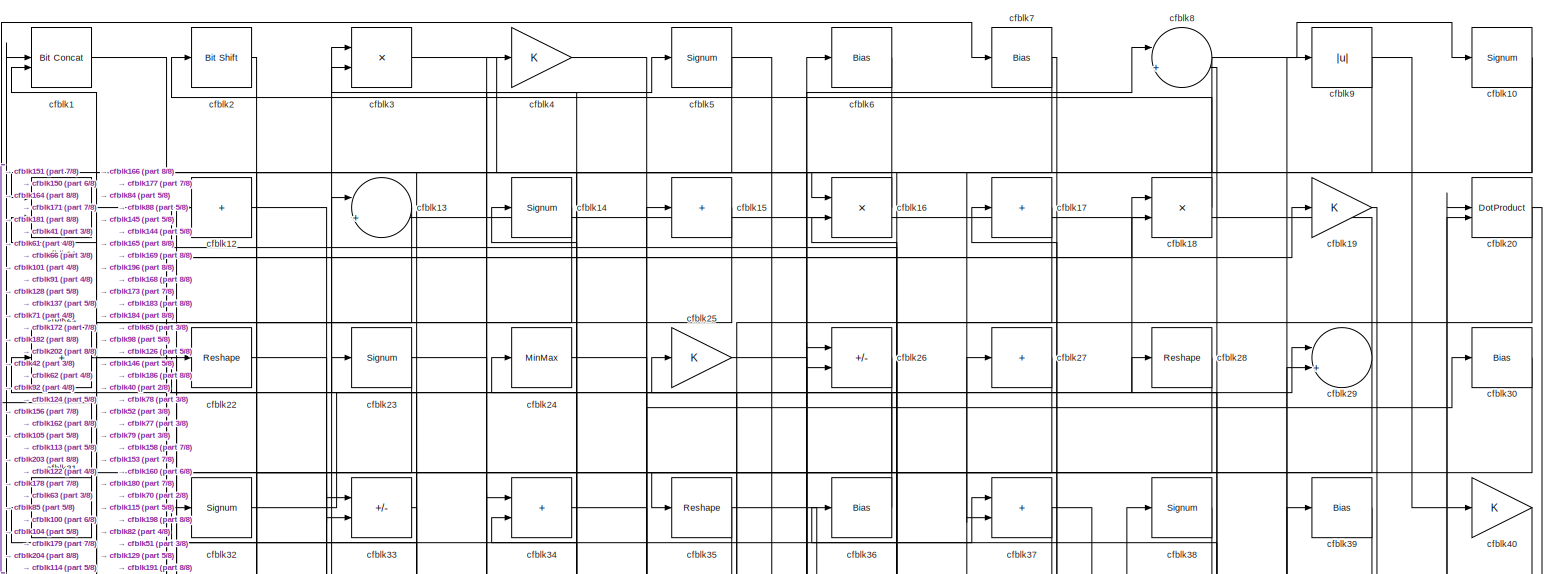
[diagram: root canvas - part 1/8, full width, top band]
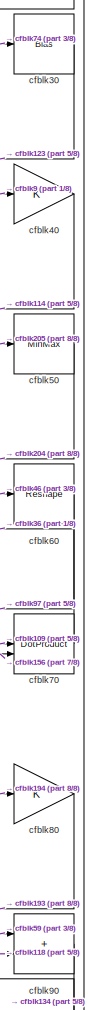
[diagram: root canvas - part 2/8, top right region]
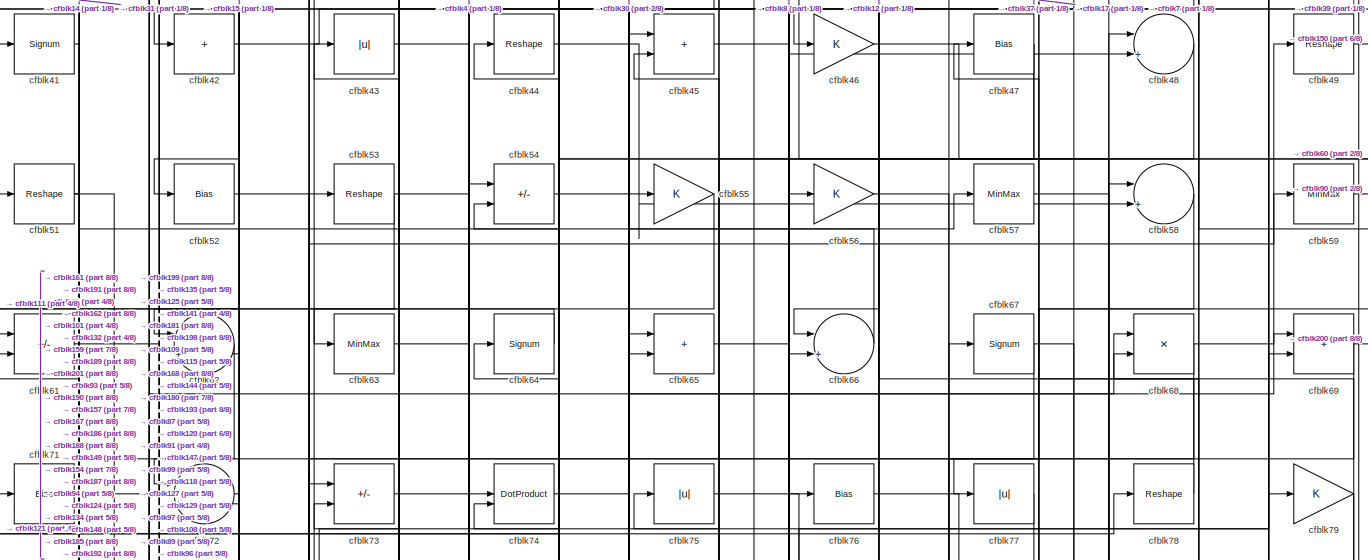
[diagram: root canvas - part 3/8, full width, top band]
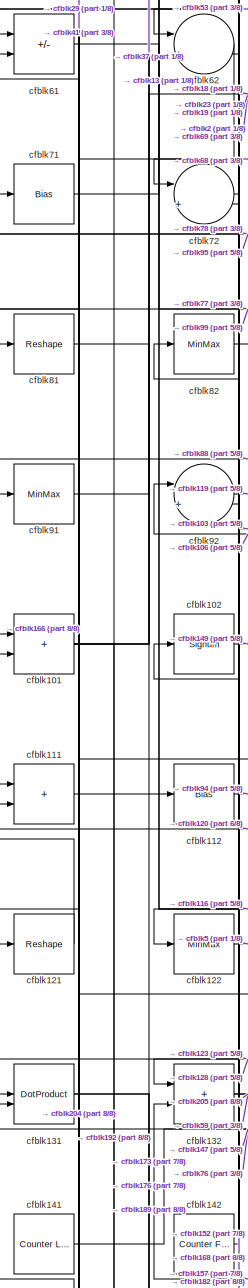
[diagram: root canvas - part 4/8, middle left region]
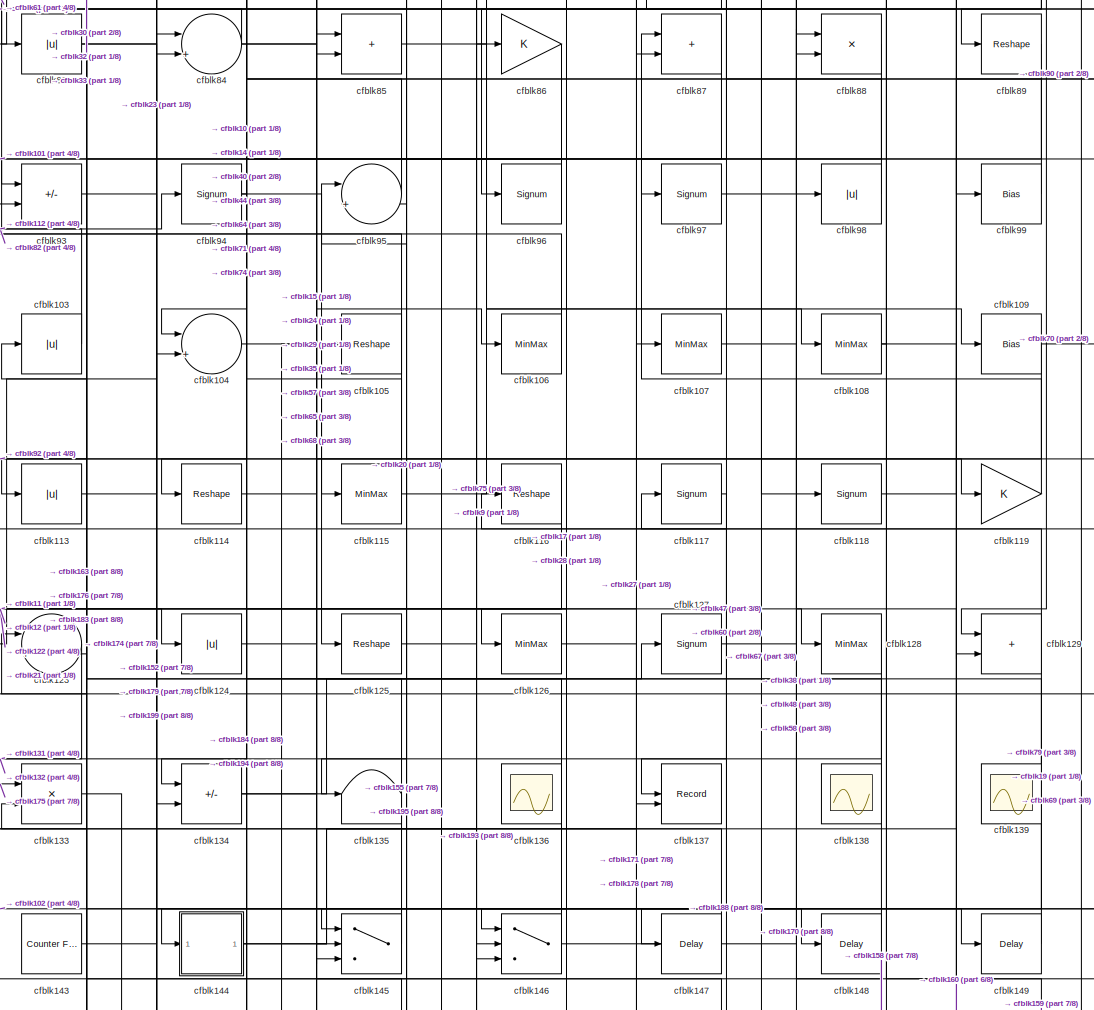
[diagram: root canvas - part 5/8, central region]
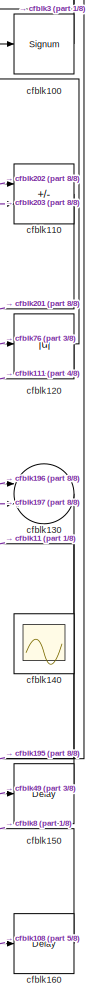
[diagram: root canvas - part 6/8, middle right region]
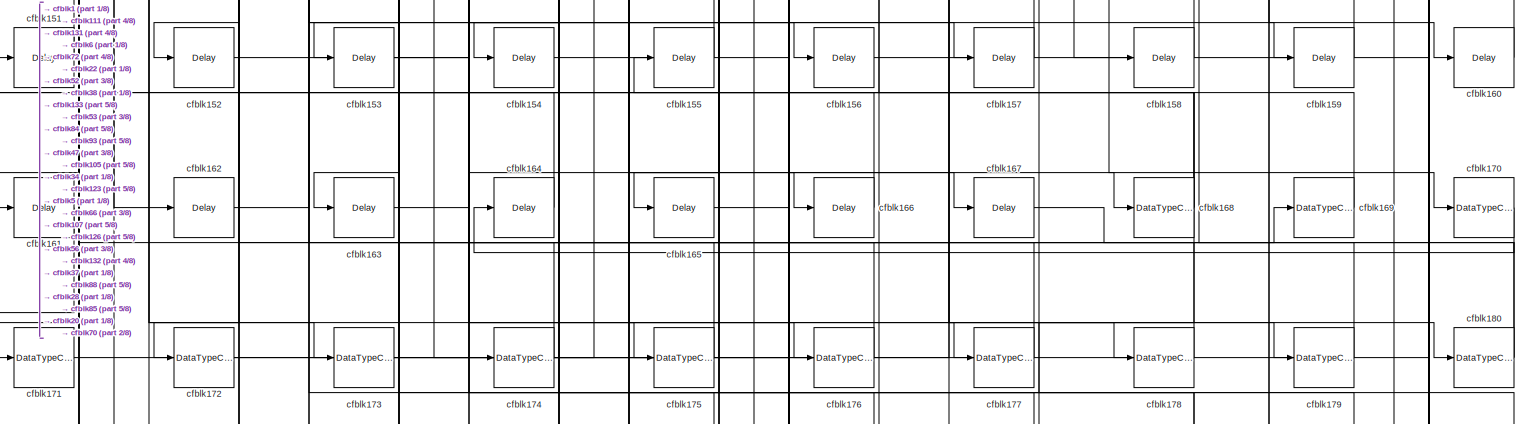
[diagram: root canvas - part 7/8, full width, bottom band]
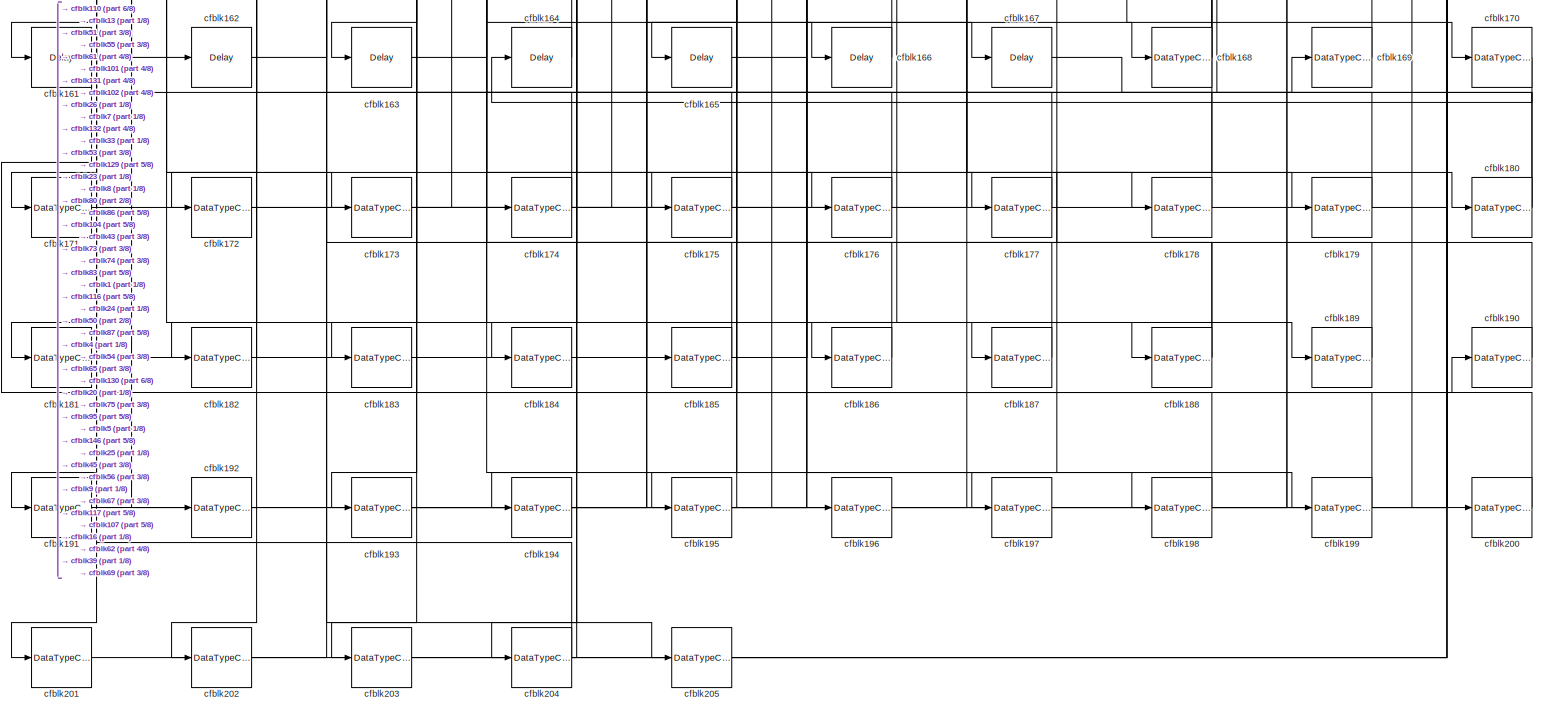
[diagram: root canvas - part 8/8, full width, bottom band]
MODEL slx_e7edcb47ba29
KIND model
CONFIG AbsTol = auto
CONFIG EnableMultiTasking = off
CONFIG FixedStep = auto
CONFIG MaxStep = auto
CONFIG MinStep = auto
CONFIG RelTol = 1e-3
CONFIG SampleTimeConstraint = Unconstrained
CONFIG SolverName = VariableStepAuto
CONFIG StartTime = 0.0
CONFIG StopTime = 10.0
BLOCK [Reference] cfblk1  REF=hdlsllib/Logic and Bit
Operations/Bit Concat
  SourceBlock = hdlsllib/Logic and Bit\nOperations/Bit Concat
  SourceType = Bit Concat
BLOCK [Signum] cfblk10
BLOCK [Signum] cfblk100
BLOCK [Sum] cfblk101
  IconShape = rectangular
BLOCK [Signum] cfblk102
BLOCK [Abs] cfblk103
  SaturateOnIntegerOverflow = off
BLOCK [Sum] cfblk104
  Inputs = |++
BLOCK [Reshape] cfblk105
BLOCK [MinMax] cfblk106
BLOCK [MinMax] cfblk107
BLOCK [MinMax] cfblk108
BLOCK [Bias] cfblk109
  Bias = 0.0
  SaturateOnIntegerOverflow = off
BLOCK [Sum] cfblk11
  IconShape = rectangular
BLOCK [Sum] cfblk110
  IconShape = rectangular
  Inputs = +-
BLOCK [Sum] cfblk111
  IconShape = rectangular
BLOCK [Bias] cfblk112
  Bias = 0.0
  SaturateOnIntegerOverflow = off
BLOCK [Abs] cfblk113
  SaturateOnIntegerOverflow = off
BLOCK [Reshape] cfblk114
BLOCK [MinMax] cfblk115
BLOCK [Reshape] cfblk116
BLOCK [Signum] cfblk117
BLOCK [Signum] cfblk118
BLOCK [Gain] cfblk119
BLOCK [Sum] cfblk12
  IconShape = rectangular
  Inputs = +
BLOCK [Abs] cfblk120
  SaturateOnIntegerOverflow = off
BLOCK [Reshape] cfblk121
BLOCK [MinMax] cfblk122
BLOCK [Sum] cfblk123
  Inputs = |++
BLOCK [Abs] cfblk124
  SaturateOnIntegerOverflow = off
BLOCK [Reshape] cfblk125
BLOCK [MinMax] cfblk126
BLOCK [Signum] cfblk127
BLOCK [MinMax] cfblk128
BLOCK [Sum] cfblk129
  IconShape = rectangular
BLOCK [Sum] cfblk13
  Inputs = |++
BLOCK [Sum] cfblk130
  Inputs = |++
BLOCK [DotProduct] cfblk131
  OutDataTypeStr = Inherit: Inherit via internal rule
BLOCK [Sum] cfblk132
  IconShape = rectangular
BLOCK [Product] cfblk133
  Inputs = */
  RndMeth = Zero
  SaturateOnIntegerOverflow = on
BLOCK [Sum] cfblk134
  IconShape = rectangular
  Inputs = +-
BLOCK [Terminator] cfblk135
BLOCK [Scope] cfblk136
  Floating = on
  NumInputPorts = 1
  ScopeSpecificationString = Simulink.scopes.TimeScopeBlockCfg('CurrentConfiguration', extmgr.ConfigurationSet(extmgr.Configuration('Core','General UI',true,'FigureColor',[0.156862745098039 0.156862745098039 0.156862745098039]),extmgr.Configuration('Core','Source UI',true),extmgr.Configuration('Sources','WiredSimulink',true,'DataLoggingVariableName','ScopeData1','DataLoggingSaveFormat','StructureWithTime','DataLoggingLimitDat...<+2713ch>  <repeated x4 — deduplicated; at blocks: cfblk136, cfblk138, cfblk139, cfblk140>
BLOCK [Record] cfblk137
  CompatibilityTag = XY
  FileSettingsInternal = {"entries":[{"content":{"excelSettings":{"content":{},"type":"Streamout.ExcelSettings"}},"type":"Streamout.FileSettingStorage","uuid":""}],"packageUris":["http:\/\/schema.mathworks.com\/mf0\/streamout_blocks\/R2020a"],"version":"1.0"}
  Layout = [1 1]
  SignalsInternal = {"entries":[{"content":{"signals":[{"content":{"blockPath":[],"dimensions":[1],"domain":"","lineColor":"#a2142f","plots":[1],"port":1,"signalID":873,"signalName":"XY Graph:1"},"type":"RecordBlkView.Signal","uuid":""},{"content":{"blockPath":[],"dimensions":[1],"domain":"","lineColor":"#139fff","plots":[1],"port":2,"signalID":876,"signalName":"XY Graph:2"},"type":"RecordBlkView.Signal","uuid":""}]}...<+144ch>
  VisualizationBindings = {"xyplotplugin":{"info":[{"series":[{"bindingParametersList":[{"parameter":"X-Axis","signalID":873,"signalName":"XY Graph:1"},{"parameter":"Y-Axis","signalID":876,"signalName":"XY Graph:2"}],"seriesID":38834}],"subplotID":1}]}}
  st = -1
BLOCK [Scope] cfblk138
  Floating = on
  NumInputPorts = 1
BLOCK [Scope] cfblk139
  Floating = on
  NumInputPorts = 1
BLOCK [Signum] cfblk14
BLOCK [Scope] cfblk140
  Floating = on
  NumInputPorts = 1
BLOCK [Reference] cfblk141  REF=hdlsllib/Sources/Counter
Limited
  SourceBlock = hdlsllib/Sources/Counter\nLimited
  SourceType = Counter Limited
BLOCK [Reference] cfblk142  REF=hdlsllib/Sources/Counter
Free-Running
  SourceBlock = hdlsllib/Sources/Counter\nFree-Running
  SourceType = Counter Free-Running
BLOCK [Reference] cfblk143  REF=hdlsllib/Sources/Counter
Free-Running
  SourceBlock = hdlsllib/Sources/Counter\nFree-Running
  SourceType = Counter Free-Running
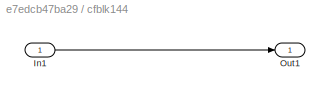
BLOCK [SubSystem] cfblk144
  LibrarySourceBlock = hdlsllib/Ports &\nSubsystems/Subsystem
BLOCK [Inport] cfblk144/In1
BLOCK [Outport] cfblk144/Out1
BLOCK [Switch] cfblk145
  InputSameDT = off
  SaturateOnIntegerOverflow = off
BLOCK [Switch] cfblk146
  InputSameDT = off
  SaturateOnIntegerOverflow = off
BLOCK [Delay] cfblk147
  InputPortMap = u0
  SampleTime = 1
BLOCK [Delay] cfblk148
  InputPortMap = u0
  SampleTime = 1
BLOCK [Delay] cfblk149
  InputPortMap = u0
  SampleTime = 1
BLOCK [Sum] cfblk15
  IconShape = rectangular
  Inputs = +
BLOCK [Delay] cfblk150
  InputPortMap = u0
  SampleTime = 1
BLOCK [Delay] cfblk151
  InputPortMap = u0
  SampleTime = 1
BLOCK [Delay] cfblk152
  InputPortMap = u0
  SampleTime = 1
BLOCK [Delay] cfblk153
  InputPortMap = u0
  SampleTime = 1
BLOCK [Delay] cfblk154
  InputPortMap = u0
  SampleTime = 1
BLOCK [Delay] cfblk155
  InputPortMap = u0
  SampleTime = 1
BLOCK [Delay] cfblk156
  InputPortMap = u0
  SampleTime = 1
BLOCK [Delay] cfblk157
  InputPortMap = u0
  SampleTime = 1
BLOCK [Delay] cfblk158
  InputPortMap = u0
  SampleTime = 1
BLOCK [Delay] cfblk159
  InputPortMap = u0
  SampleTime = 1
BLOCK [Product] cfblk16
  Inputs = */
  RndMeth = Zero
  SaturateOnIntegerOverflow = on
BLOCK [Delay] cfblk160
  InputPortMap = u0
  SampleTime = 1
BLOCK [Delay] cfblk161
  InputPortMap = u0
  SampleTime = 1
BLOCK [Delay] cfblk162
  InputPortMap = u0
  SampleTime = 1
BLOCK [Delay] cfblk163
  InputPortMap = u0
  SampleTime = 1
BLOCK [Delay] cfblk164
  InputPortMap = u0
  SampleTime = 1
BLOCK [Delay] cfblk165
  InputPortMap = u0
  SampleTime = 1
BLOCK [Delay] cfblk166
  InputPortMap = u0
  SampleTime = 1
BLOCK [Delay] cfblk167
  InputPortMap = u0
  SampleTime = 1
BLOCK [DataTypeConversion] cfblk168
  RndMeth = Floor
  SaturateOnIntegerOverflow = off
BLOCK [DataTypeConversion] cfblk169
  OutDataTypeStr = uint8
  RndMeth = Floor
  SaturateOnIntegerOverflow = off
BLOCK [Sum] cfblk17
  IconShape = rectangular
  Inputs = +
BLOCK [DataTypeConversion] cfblk170
  OutDataTypeStr = uint8
  RndMeth = Floor
  SaturateOnIntegerOverflow = off
BLOCK [DataTypeConversion] cfblk171
  OutDataTypeStr = uint8
  RndMeth = Floor
  SaturateOnIntegerOverflow = off
BLOCK [DataTypeConversion] cfblk172
  OutDataTypeStr = uint8
  RndMeth = Floor
  SaturateOnIntegerOverflow = off
BLOCK [DataTypeConversion] cfblk173
  OutDataTypeStr = uint8
  RndMeth = Floor
  SaturateOnIntegerOverflow = off
BLOCK [DataTypeConversion] cfblk174
  RndMeth = Floor
  SaturateOnIntegerOverflow = off
BLOCK [DataTypeConversion] cfblk175
  OutDataTypeStr = uint8
  RndMeth = Floor
  SaturateOnIntegerOverflow = off
BLOCK [DataTypeConversion] cfblk176
  OutDataTypeStr = uint8
  RndMeth = Floor
  SaturateOnIntegerOverflow = off
BLOCK [DataTypeConversion] cfblk177
  OutDataTypeStr = uint8
  RndMeth = Floor
  SaturateOnIntegerOverflow = off
BLOCK [DataTypeConversion] cfblk178
  OutDataTypeStr = uint8
  RndMeth = Floor
  SaturateOnIntegerOverflow = off
BLOCK [DataTypeConversion] cfblk179
  OutDataTypeStr = uint8
  RndMeth = Floor
  SaturateOnIntegerOverflow = off
BLOCK [Product] cfblk18
  Inputs = */
  RndMeth = Zero
  SaturateOnIntegerOverflow = on
BLOCK [DataTypeConversion] cfblk180
  RndMeth = Floor
  SaturateOnIntegerOverflow = off
BLOCK [DataTypeConversion] cfblk181
  OutDataTypeStr = uint8
  RndMeth = Floor
  SaturateOnIntegerOverflow = off
BLOCK [DataTypeConversion] cfblk182
  OutDataTypeStr = uint8
  RndMeth = Floor
  SaturateOnIntegerOverflow = off
BLOCK [DataTypeConversion] cfblk183
  OutDataTypeStr = uint8
  RndMeth = Floor
  SaturateOnIntegerOverflow = off
BLOCK [DataTypeConversion] cfblk184
  OutDataTypeStr = uint8
  RndMeth = Floor
  SaturateOnIntegerOverflow = off
BLOCK [DataTypeConversion] cfblk185
  OutDataTypeStr = uint8
  RndMeth = Floor
  SaturateOnIntegerOverflow = off
BLOCK [DataTypeConversion] cfblk186
  OutDataTypeStr = uint8
  RndMeth = Floor
  SaturateOnIntegerOverflow = off
BLOCK [DataTypeConversion] cfblk187
  OutDataTypeStr = uint8
  RndMeth = Floor
  SaturateOnIntegerOverflow = off
BLOCK [DataTypeConversion] cfblk188
  RndMeth = Floor
  SaturateOnIntegerOverflow = off
BLOCK [DataTypeConversion] cfblk189
  OutDataTypeStr = uint8
  RndMeth = Floor
  SaturateOnIntegerOverflow = off
BLOCK [Gain] cfblk19
BLOCK [DataTypeConversion] cfblk190
  OutDataTypeStr = uint8
  RndMeth = Floor
  SaturateOnIntegerOverflow = off
BLOCK [DataTypeConversion] cfblk191
  RndMeth = Floor
  SaturateOnIntegerOverflow = off
BLOCK [DataTypeConversion] cfblk192
  OutDataTypeStr = uint8
  RndMeth = Floor
  SaturateOnIntegerOverflow = off
BLOCK [DataTypeConversion] cfblk193
  RndMeth = Floor
  SaturateOnIntegerOverflow = off
BLOCK [DataTypeConversion] cfblk194
  OutDataTypeStr = uint8
  RndMeth = Floor
  SaturateOnIntegerOverflow = off
BLOCK [DataTypeConversion] cfblk195
  RndMeth = Floor
  SaturateOnIntegerOverflow = off
BLOCK [DataTypeConversion] cfblk196
  OutDataTypeStr = uint8
  RndMeth = Floor
  SaturateOnIntegerOverflow = off
BLOCK [DataTypeConversion] cfblk197
  OutDataTypeStr = uint8
  RndMeth = Floor
  SaturateOnIntegerOverflow = off
BLOCK [DataTypeConversion] cfblk198
  RndMeth = Floor
  SaturateOnIntegerOverflow = off
BLOCK [DataTypeConversion] cfblk199
  OutDataTypeStr = uint8
  RndMeth = Floor
  SaturateOnIntegerOverflow = off
BLOCK [Reference] cfblk2  REF=hdlsllib/Logic and Bit
Operations/Bit Shift
  SourceBlock = hdlsllib/Logic and Bit\nOperations/Bit Shift
  SourceType = Bit Shift
BLOCK [DotProduct] cfblk20
  OutDataTypeStr = Inherit: Inherit via internal rule
BLOCK [DataTypeConversion] cfblk200
  OutDataTypeStr = uint8
  RndMeth = Floor
  SaturateOnIntegerOverflow = off
BLOCK [DataTypeConversion] cfblk201
  OutDataTypeStr = uint8
  RndMeth = Floor
  SaturateOnIntegerOverflow = off
BLOCK [DataTypeConversion] cfblk202
  OutDataTypeStr = uint8
  RndMeth = Floor
  SaturateOnIntegerOverflow = off
BLOCK [DataTypeConversion] cfblk203
  OutDataTypeStr = uint8
  RndMeth = Floor
  SaturateOnIntegerOverflow = off
BLOCK [DataTypeConversion] cfblk204
  RndMeth = Floor
  SaturateOnIntegerOverflow = off
BLOCK [DataTypeConversion] cfblk205
  OutDataTypeStr = uint8
  RndMeth = Floor
  SaturateOnIntegerOverflow = off
BLOCK [Sum] cfblk21
  IconShape = rectangular
  Inputs = +
BLOCK [Reshape] cfblk22
BLOCK [Signum] cfblk23
BLOCK [MinMax] cfblk24
BLOCK [Gain] cfblk25
BLOCK [Sum] cfblk26
  IconShape = rectangular
  Inputs = +-
BLOCK [Sum] cfblk27
  IconShape = rectangular
  Inputs = +
BLOCK [Reshape] cfblk28
BLOCK [Sum] cfblk29
  Inputs = |++
BLOCK [Product] cfblk3
  Inputs = */
  RndMeth = Zero
  SaturateOnIntegerOverflow = on
BLOCK [Bias] cfblk30
  Bias = 0.0
  SaturateOnIntegerOverflow = off
BLOCK [Sum] cfblk31
  IconShape = rectangular
  Inputs = +
BLOCK [Signum] cfblk32
BLOCK [Sum] cfblk33
  IconShape = rectangular
  Inputs = +-
BLOCK [Sum] cfblk34
  IconShape = rectangular
BLOCK [Reshape] cfblk35
BLOCK [Bias] cfblk36
  Bias = 0.0
  SaturateOnIntegerOverflow = off
BLOCK [Sum] cfblk37
  IconShape = rectangular
BLOCK [Signum] cfblk38
BLOCK [Bias] cfblk39
  Bias = 0.0
  SaturateOnIntegerOverflow = off
BLOCK [Gain] cfblk4
BLOCK [Gain] cfblk40
BLOCK [Signum] cfblk41
BLOCK [Sum] cfblk42
  IconShape = rectangular
  Inputs = +
BLOCK [Abs] cfblk43
  SaturateOnIntegerOverflow = off
BLOCK [Reshape] cfblk44
BLOCK [Sum] cfblk45
  IconShape = rectangular
BLOCK [Gain] cfblk46
BLOCK [Bias] cfblk47
  Bias = 0.0
  SaturateOnIntegerOverflow = off
BLOCK [Sum] cfblk48
  Inputs = |++
BLOCK [Reshape] cfblk49
BLOCK [Signum] cfblk5
BLOCK [MinMax] cfblk50
BLOCK [Reshape] cfblk51
BLOCK [Bias] cfblk52
  Bias = 0.0
  SaturateOnIntegerOverflow = off
BLOCK [Reshape] cfblk53
BLOCK [Sum] cfblk54
  IconShape = rectangular
  Inputs = +-
BLOCK [Gain] cfblk55
BLOCK [Gain] cfblk56
BLOCK [MinMax] cfblk57
BLOCK [Sum] cfblk58
  Inputs = |++
BLOCK [MinMax] cfblk59
BLOCK [Bias] cfblk6
  Bias = 0.0
  SaturateOnIntegerOverflow = off
BLOCK [Reshape] cfblk60
BLOCK [Sum] cfblk61
  IconShape = rectangular
  Inputs = +-
BLOCK [Sum] cfblk62
  Inputs = |++
BLOCK [MinMax] cfblk63
BLOCK [Signum] cfblk64
BLOCK [Sum] cfblk65
  IconShape = rectangular
BLOCK [Sum] cfblk66
  Inputs = |++
BLOCK [Signum] cfblk67
BLOCK [Product] cfblk68
  Inputs = */
  RndMeth = Zero
  SaturateOnIntegerOverflow = on
BLOCK [Sum] cfblk69
  IconShape = rectangular
BLOCK [Bias] cfblk7
  Bias = 0.0
  SaturateOnIntegerOverflow = off
BLOCK [DotProduct] cfblk70
  OutDataTypeStr = Inherit: Inherit via internal rule
BLOCK [Bias] cfblk71
  Bias = 0.0
  SaturateOnIntegerOverflow = off
BLOCK [Sum] cfblk72
  Inputs = |++
BLOCK [Sum] cfblk73
  IconShape = rectangular
  Inputs = +-
BLOCK [DotProduct] cfblk74
  OutDataTypeStr = Inherit: Inherit via internal rule
BLOCK [Abs] cfblk75
  SaturateOnIntegerOverflow = off
BLOCK [Bias] cfblk76
  Bias = 0.0
  SaturateOnIntegerOverflow = off
BLOCK [Abs] cfblk77
  SaturateOnIntegerOverflow = off
BLOCK [Reshape] cfblk78
BLOCK [Gain] cfblk79
BLOCK [Sum] cfblk8
  Inputs = |++
BLOCK [Gain] cfblk80
BLOCK [Reshape] cfblk81
BLOCK [MinMax] cfblk82
BLOCK [Abs] cfblk83
  SaturateOnIntegerOverflow = off
BLOCK [Sum] cfblk84
  Inputs = |++
BLOCK [Sum] cfblk85
  IconShape = rectangular
BLOCK [Gain] cfblk86
BLOCK [Sum] cfblk87
  IconShape = rectangular
BLOCK [Product] cfblk88
  Inputs = */
  RndMeth = Zero
  SaturateOnIntegerOverflow = on
BLOCK [Reshape] cfblk89
BLOCK [Abs] cfblk9
  SaturateOnIntegerOverflow = off
BLOCK [Sum] cfblk90
  IconShape = rectangular
BLOCK [MinMax] cfblk91
BLOCK [Sum] cfblk92
  Inputs = |++
BLOCK [Sum] cfblk93
  IconShape = rectangular
  Inputs = +-
BLOCK [Signum] cfblk94
BLOCK [Sum] cfblk95
  Inputs = |++
BLOCK [Signum] cfblk96
BLOCK [Signum] cfblk97
BLOCK [Abs] cfblk98
  SaturateOnIntegerOverflow = off
BLOCK [Bias] cfblk99
  Bias = 0.0
  SaturateOnIntegerOverflow = off
LINE cfblk100:1 -> cfblk3:2
NET cfblk101:1 -> cfblk18:2, cfblk192:1, cfblk19:1, cfblk69:1
LINE cfblk102:1 -> cfblk149:1
LINE cfblk103:1 -> cfblk82:1
LINE cfblk104:1 -> cfblk115:1
NET cfblk105:1 -> cfblk145:3, cfblk3:1
LINE cfblk106:1 -> cfblk92:1
LINE cfblk107:1 -> cfblk170:1
NET cfblk108:1 -> cfblk160:1, cfblk68:1
NET cfblk109:1 -> cfblk145:1, cfblk70:1
NET cfblk10:1 -> cfblk104:1, cfblk37:2
LINE cfblk110:1 -> cfblk201:1
LINE cfblk111:1 -> cfblk176:1
LINE cfblk112:1 -> cfblk94:1
LINE cfblk113:1 -> cfblk84:2
LINE cfblk114:1 -> cfblk29:1
NET cfblk115:1 -> cfblk64:1, cfblk9:1
NET cfblk116:1 -> cfblk122:1, cfblk194:1
LINE cfblk117:1 -> cfblk137:1
LINE cfblk118:1 -> cfblk90:2
LINE cfblk119:1 -> cfblk87:1
LINE cfblk11:1 -> cfblk128:1
NET cfblk120:1 -> cfblk100:1, cfblk111:1
LINE cfblk121:1 -> cfblk78:1
LINE cfblk122:1 -> cfblk5:1
LINE cfblk123:1 -> cfblk131:2
LINE cfblk124:1 -> cfblk57:1
LINE cfblk125:1 -> cfblk48:2
LINE cfblk126:1 -> cfblk178:1
LINE cfblk127:1 -> cfblk48:1
LINE cfblk128:1 -> cfblk132:1
NET cfblk129:1 -> cfblk116:1, cfblk163:1
LINE cfblk12:1 -> cfblk124:1
LINE cfblk130:1 -> cfblk195:1
NET cfblk131:1 -> cfblk173:1, cfblk189:1
NET cfblk132:1 -> cfblk205:1, cfblk59:1
LINE cfblk133:1 -> cfblk174:1
NET cfblk134:1 -> cfblk127:1, cfblk68:2
LINE cfblk13:1 -> cfblk181:1
LINE cfblk141:1 -> cfblk76:1
LINE cfblk142:1 -> cfblk72:2
LINE cfblk143:1 -> cfblk134:2
LINE cfblk144/In1:1 -> cfblk144/Out1:1
NET cfblk144:1 -> cfblk27:1, cfblk79:1
LINE cfblk145:1 -> cfblk103:1
NET cfblk146:1 -> cfblk32:1, cfblk38:1
LINE cfblk147:1 -> cfblk131:1
LINE cfblk148:1 -> cfblk65:1
LINE cfblk149:1 -> cfblk74:2
LINE cfblk14:1 -> cfblk41:1
LINE cfblk150:1 -> cfblk11:2
LINE cfblk151:1 -> cfblk1:1
LINE cfblk152:1 -> cfblk84:1
LINE cfblk153:1 -> cfblk175:1
LINE cfblk154:1 -> cfblk66:2
LINE cfblk155:1 -> cfblk123:1
LINE cfblk156:1 -> cfblk70:2
LINE cfblk157:1 -> cfblk132:2
LINE cfblk158:1 -> cfblk88:1
LINE cfblk159:1 -> cfblk85:1
LINE cfblk15:1 -> cfblk42:1
LINE cfblk160:1 -> cfblk8:2
LINE cfblk161:1 -> cfblk190:1
LINE cfblk162:1 -> cfblk33:1
LINE cfblk163:1 -> cfblk104:2
LINE cfblk164:1 -> cfblk1:2
LINE cfblk165:1 -> cfblk187:1
LINE cfblk166:1 -> cfblk101:1
LINE cfblk167:1 -> cfblk169:1
NET cfblk168:1 -> cfblk16:2, cfblk197:1, cfblk43:1, cfblk62:2
LINE cfblk169:1 -> cfblk25:1
LINE cfblk16:1 -> cfblk11:1
LINE cfblk170:1 -> cfblk164:1
LINE cfblk171:1 -> cfblk107:1
LINE cfblk172:1 -> cfblk20:1
LINE cfblk173:1 -> cfblk6:1
NET cfblk174:1 -> cfblk105:1, cfblk151:1
LINE cfblk175:1 -> cfblk133:1
LINE cfblk176:1 -> cfblk133:2
LINE cfblk177:1 -> cfblk22:1
LINE cfblk178:1 -> cfblk34:1
LINE cfblk179:1 -> cfblk34:2
LINE cfblk17:1 -> cfblk146:1
NET cfblk180:1 -> cfblk155:1, cfblk28:1
LINE cfblk181:1 -> cfblk56:1
LINE cfblk182:1 -> cfblk102:1
LINE cfblk183:1 -> cfblk26:1
LINE cfblk184:1 -> cfblk26:2
LINE cfblk185:1 -> cfblk74:1
LINE cfblk186:1 -> cfblk54:1
LINE cfblk187:1 -> cfblk54:2
NET cfblk188:1 -> cfblk117:1, cfblk75:1
LINE cfblk189:1 -> cfblk73:1
LINE cfblk18:1 -> cfblk2:1
LINE cfblk190:1 -> cfblk73:2
NET cfblk191:1 -> cfblk20:2, cfblk65:2
LINE cfblk192:1 -> cfblk55:1
NET cfblk193:1 -> cfblk146:3, cfblk67:1, cfblk69:2
LINE cfblk194:1 -> cfblk80:1
NET cfblk195:1 -> cfblk86:1, cfblk95:1
LINE cfblk196:1 -> cfblk130:1
LINE cfblk197:1 -> cfblk130:2
NET cfblk198:1 -> cfblk23:1, cfblk39:1
LINE cfblk199:1 -> cfblk45:1
LINE cfblk19:1 -> cfblk129:1
LINE cfblk1:1 -> cfblk16:1
LINE cfblk200:1 -> cfblk45:2
LINE cfblk201:1 -> cfblk53:1
LINE cfblk202:1 -> cfblk110:1
LINE cfblk203:1 -> cfblk110:2
NET cfblk204:1 -> cfblk24:1, cfblk61:2
LINE cfblk205:1 -> cfblk50:1
NET cfblk20:1 -> cfblk144:1, cfblk165:1
NET cfblk21:1 -> cfblk137:2, cfblk33:2
LINE cfblk22:1 -> cfblk156:1
NET cfblk23:1 -> cfblk85:2, cfblk92:2
LINE cfblk24:1 -> cfblk88:2
LINE cfblk25:1 -> cfblk168:1
LINE cfblk26:1 -> cfblk182:1
LINE cfblk27:1 -> cfblk35:1
LINE cfblk28:1 -> cfblk126:1
NET cfblk29:1 -> cfblk13:2, cfblk61:1
LINE cfblk2:1 -> cfblk62:1
LINE cfblk30:1 -> cfblk123:2
LINE cfblk31:1 -> cfblk7:1
LINE cfblk32:1 -> cfblk18:1
LINE cfblk33:1 -> cfblk113:1
LINE cfblk34:1 -> cfblk177:1
NET cfblk35:1 -> cfblk145:2, cfblk98:1
LINE cfblk36:1 -> cfblk21:1
NET cfblk37:1 -> cfblk158:1, cfblk52:1
LINE cfblk38:1 -> cfblk153:1
LINE cfblk39:1 -> cfblk51:1
LINE cfblk3:1 -> cfblk146:2
LINE cfblk40:1 -> cfblk114:1
LINE cfblk41:1 -> cfblk121:1
LINE cfblk42:1 -> cfblk46:1
LINE cfblk43:1 -> cfblk167:1
LINE cfblk44:1 -> cfblk58:2
LINE cfblk45:1 -> cfblk198:1
LINE cfblk46:1 -> cfblk60:1
NET cfblk47:1 -> cfblk135:1, cfblk154:1
LINE cfblk48:1 -> cfblk66:1
LINE cfblk49:1 -> cfblk150:1
LINE cfblk4:1 -> cfblk166:1
LINE cfblk50:1 -> cfblk204:1
NET cfblk51:1 -> cfblk161:1, cfblk162:1
LINE cfblk52:1 -> cfblk159:1
NET cfblk53:1 -> cfblk111:2, cfblk157:1
LINE cfblk54:1 -> cfblk185:1
LINE cfblk55:1 -> cfblk191:1
LINE cfblk56:1 -> cfblk180:1
LINE cfblk57:1 -> cfblk129:2
LINE cfblk58:1 -> cfblk147:1
LINE cfblk59:1 -> cfblk90:1
NET cfblk5:1 -> cfblk171:1, cfblk196:1
LINE cfblk60:1 -> cfblk97:1
LINE cfblk61:1 -> cfblk99:1
LINE cfblk62:1 -> cfblk72:1
LINE cfblk63:1 -> cfblk4:1
LINE cfblk64:1 -> cfblk63:1
LINE cfblk65:1 -> cfblk8:1
LINE cfblk66:1 -> cfblk31:1
NET cfblk67:1 -> cfblk118:1, cfblk93:2
NET cfblk68:1 -> cfblk49:1, cfblk81:1
NET cfblk69:1 -> cfblk200:1, cfblk87:2
LINE cfblk6:1 -> cfblk172:1
LINE cfblk70:1 -> cfblk36:1
LINE cfblk71:1 -> cfblk13:1
LINE cfblk72:1 -> cfblk152:1
LINE cfblk73:1 -> cfblk188:1
LINE cfblk74:1 -> cfblk30:1
LINE cfblk75:1 -> cfblk109:1
LINE cfblk76:1 -> cfblk120:1
LINE cfblk77:1 -> cfblk91:1
LINE cfblk78:1 -> cfblk12:1
NET cfblk79:1 -> cfblk17:1, cfblk89:1, cfblk96:1
NET cfblk7:1 -> cfblk202:1, cfblk77:1
LINE cfblk80:1 -> cfblk193:1
LINE cfblk81:1 -> cfblk112:1
LINE cfblk82:1 -> cfblk29:2
NET cfblk83:1 -> cfblk148:1, cfblk199:1
NET cfblk84:1 -> cfblk106:1, cfblk15:1, cfblk83:1
LINE cfblk85:1 -> cfblk108:1
LINE cfblk86:1 -> cfblk183:1
LINE cfblk87:1 -> cfblk184:1
LINE cfblk88:1 -> cfblk101:2
LINE cfblk89:1 -> cfblk95:2
NET cfblk8:1 -> cfblk10:1, cfblk203:1
LINE cfblk90:1 -> cfblk134:1
LINE cfblk91:1 -> cfblk37:1
LINE cfblk92:1 -> cfblk119:1
LINE cfblk93:1 -> cfblk179:1
NET cfblk94:1 -> cfblk125:1, cfblk44:1
LINE cfblk95:1 -> cfblk71:1
LINE cfblk96:1 -> cfblk93:1
LINE cfblk97:1 -> cfblk58:1
LINE cfblk98:1 -> cfblk14:1
LINE cfblk99:1 -> cfblk47:1
NET cfblk9:1 -> cfblk186:1, cfblk40:1
note: NET lines group one-source signal fan-out (src -> all destinations, sorted); 1:1 wires keep LINE
